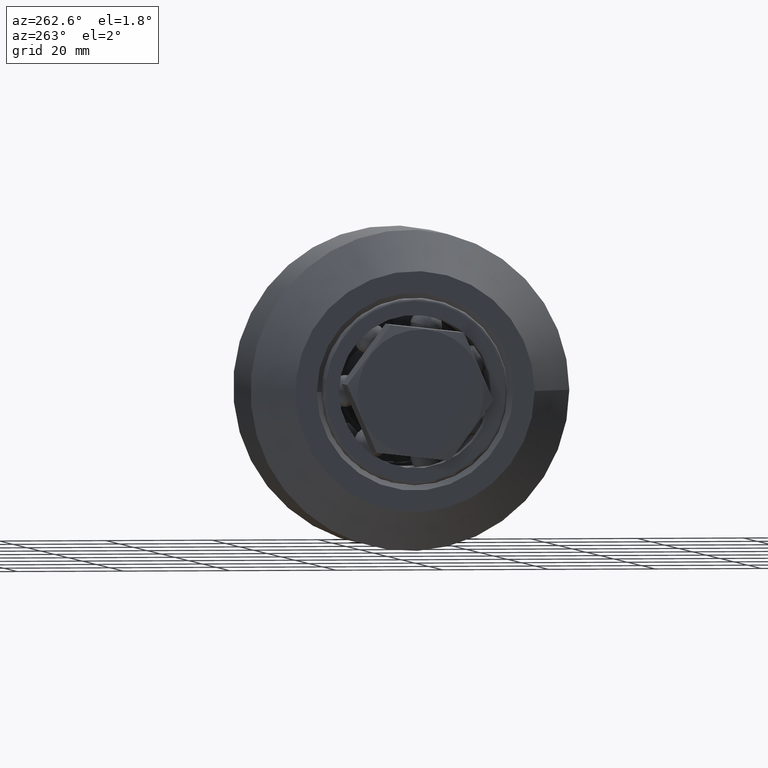
[diagram: clean part render]
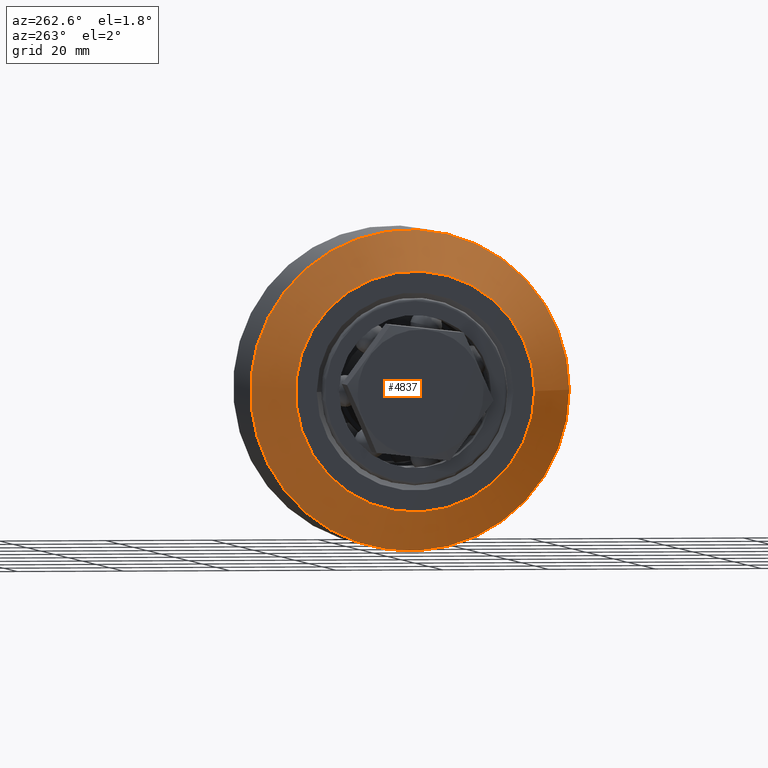
[diagram: same view with one face highlighted and labeled with its STEP entity id]
A machine part, auxiliary view. The second image highlights one B-rep face of the part: STEP entity #4837.
In plain terms, the highlighted conical surface has half-angle 45 deg.
Its self-contained STEP definition (entity closure, byte-faithful):
#581=FACE_OUTER_BOUND('',#854,.T.);
#854=EDGE_LOOP('',(#3305,#3306,#3307,#3308));
#1155=LINE('',#7315,#1445);
#1445=VECTOR('',#5908,26.25);
#1734=CIRCLE('',#5308,22.5);
#1741=CIRCLE('',#5320,30.);
#2001=VERTEX_POINT('',#7291);
#2008=VERTEX_POINT('',#7313);
#2519=EDGE_CURVE('',#2001,#2001,#1734,.T.);
#2529=EDGE_CURVE('',#2008,#2008,#1741,.T.);
#2530=EDGE_CURVE('',#2008,#2001,#1155,.T.);
#3305=ORIENTED_EDGE('',*,*,#2529,.F.);
#3306=ORIENTED_EDGE('',*,*,#2530,.T.);
#3307=ORIENTED_EDGE('',*,*,#2519,.T.);
#3308=ORIENTED_EDGE('',*,*,#2530,.F.);
#4815=CONICAL_SURFACE('',#5319,26.25,0.785398163397448);
#4837=ADVANCED_FACE('',(#581),#4815,.T.);
#5308=AXIS2_PLACEMENT_3D('',#7292,#5879,#5880);
#5319=AXIS2_PLACEMENT_3D('',#7312,#5904,#5905);
#5320=AXIS2_PLACEMENT_3D('',#7314,#5906,#5907);
#5879=DIRECTION('center_axis',(1.,0.,0.));
#5880=DIRECTION('ref_axis',(0.,1.,0.));
#5904=DIRECTION('center_axis',(1.,0.,0.));
#5905=DIRECTION('ref_axis',(0.,1.,0.));
#5906=DIRECTION('center_axis',(1.,0.,0.));
#5907=DIRECTION('ref_axis',(0.,1.,0.));
#5908=DIRECTION('',(-0.707106781186548,0.707106781186548,8.65956056235493E-17));
#7291=CARTESIAN_POINT('',(-20.,-22.5,-2.75545529808154E-15));
#7292=CARTESIAN_POINT('Origin',(-20.,0.,0.));
#7312=CARTESIAN_POINT('Origin',(-16.25,0.,0.));
#7313=CARTESIAN_POINT('',(-12.5,-30.,-3.67394039744206E-15));
#7314=CARTESIAN_POINT('Origin',(-12.5,0.,0.));
#7315=CARTESIAN_POINT('',(-16.25,-26.25,-3.2146978477618E-15));